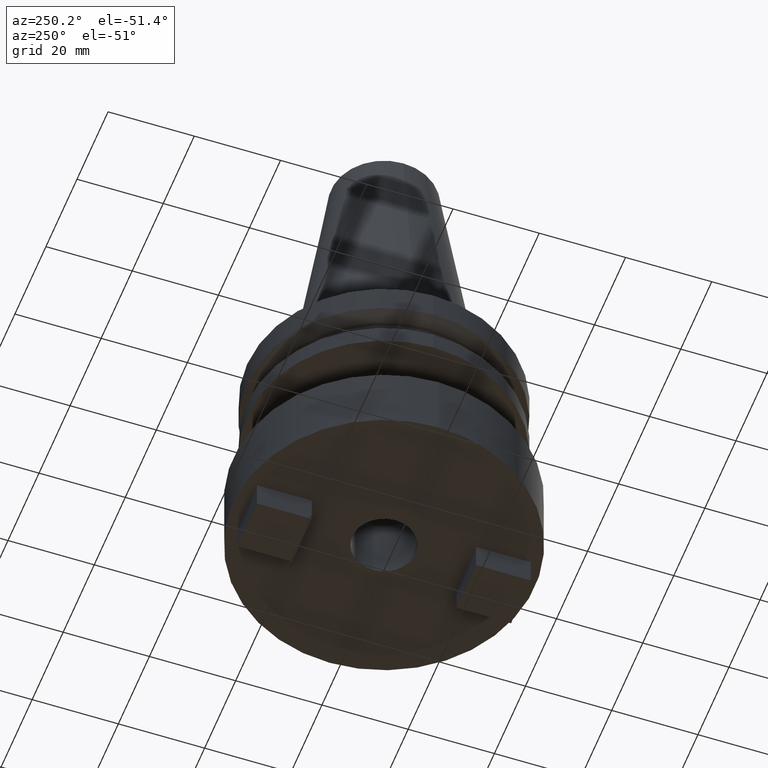
[diagram: clean part render]
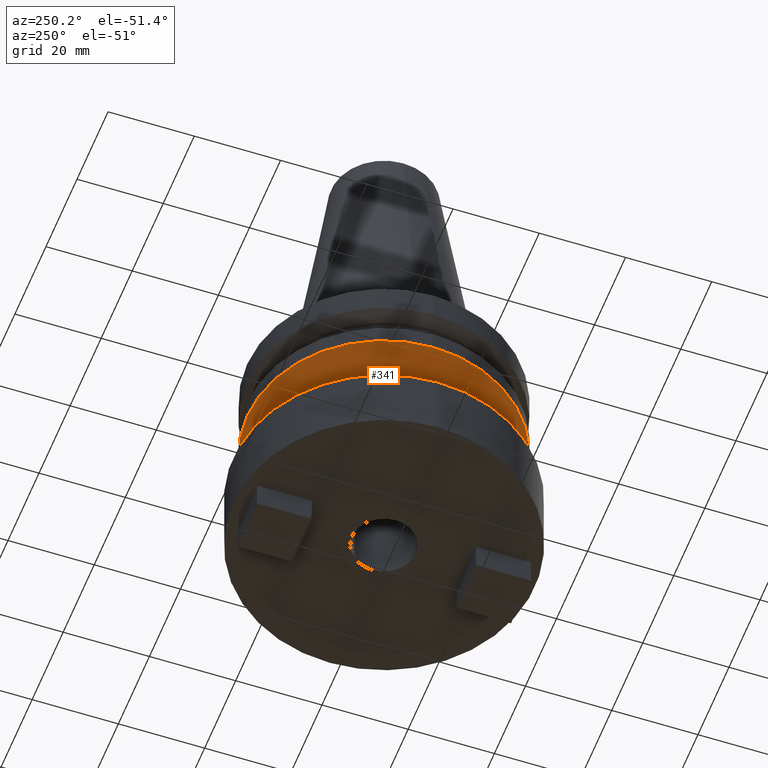
[diagram: same view with one face highlighted and labeled with its STEP entity id]
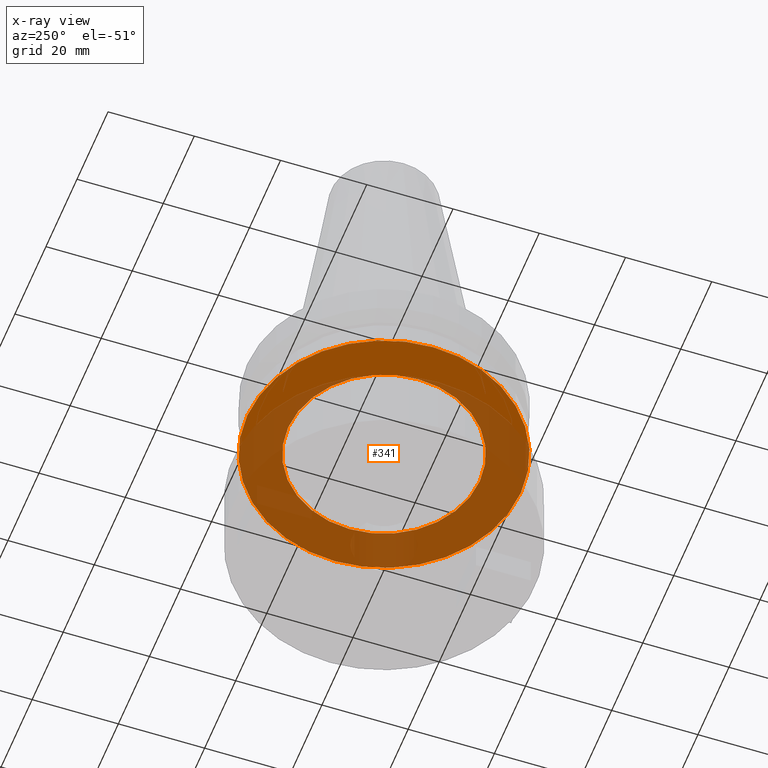
[diagram: x-ray of the same camera — body ghosted, the highlighted face saturated]
A machine part, auxiliary view. The second image highlights one B-rep face of the part: STEP entity #341.
The next image is the same camera in x-ray: the body ghosted, the highlighted face saturated — about 67% of this face is hidden behind the body in this view.
In plain terms, the highlighted planar face has unit normal (0, -0, 1).
Its self-contained STEP definition (entity closure, byte-faithful):
#9 = ORIENTED_EDGE ( 'NONE', *, *, #569, .F. ) ;
#44 = AXIS2_PLACEMENT_3D ( 'NONE', #920, #765, #421 ) ;
#79 = FACE_BOUND ( 'NONE', #702, .T. ) ;
#85 = DIRECTION ( 'NONE',  ( 0.000000000000000000, -0.000000000000000000, 1.000000000000000000 ) ) ;
#90 = DIRECTION ( 'NONE',  ( -0.000000000000000000, -0.000000000000000000, 1.000000000000000000 ) ) ;
#158 = CARTESIAN_POINT ( 'NONE',  ( 0.000000000000000000, 0.000000000000000000, -19.04999999999999716 ) ) ;
#159 = CARTESIAN_POINT ( 'NONE',  ( 0.000000000000000000, 0.000000000000000000, -19.04999999999999716 ) ) ;
#184 = AXIS2_PLACEMENT_3D ( 'NONE', #753, #85, #511 ) ;
#227 = EDGE_CURVE ( 'NONE', #779, #291, #667, .T. ) ;
#233 = AXIS2_PLACEMENT_3D ( 'NONE', #555, #739, #386 ) ;
#269 = CIRCLE ( 'NONE', #889, 31.74999999999999289 ) ;
#291 = VERTEX_POINT ( 'NONE', #585 ) ;
#299 = VERTEX_POINT ( 'NONE', #1004 ) ;
#317 = PLANE ( 'NONE',  #184 ) ;
#341 = ADVANCED_FACE ( 'NONE', ( #590, #79 ), #317, .F. ) ;
#350 = EDGE_CURVE ( 'NONE', #299, #370, #269, .T. ) ;
#369 = AXIS2_PLACEMENT_3D ( 'NONE', #158, #595, #601 ) ;
#370 = VERTEX_POINT ( 'NONE', #759 ) ;
#386 = DIRECTION ( 'NONE',  ( 1.000000000000000000, 0.000000000000000000, 0.000000000000000000 ) ) ;
#421 = DIRECTION ( 'NONE',  ( 1.000000000000000000, 0.000000000000000000, 0.000000000000000000 ) ) ;
#472 = ORIENTED_EDGE ( 'NONE', *, *, #1068, .T. ) ;
#511 = DIRECTION ( 'NONE',  ( 1.000000000000000000, 0.000000000000000000, 0.000000000000000000 ) ) ;
#555 = CARTESIAN_POINT ( 'NONE',  ( 0.000000000000000000, 0.000000000000000000, -19.04999999999999716 ) ) ;
#569 = EDGE_CURVE ( 'NONE', #370, #299, #844, .T. ) ;
#585 = CARTESIAN_POINT ( 'NONE',  ( 22.22500000000000142, 0.000000000000000000, -19.04999999999999716 ) ) ;
#590 = FACE_OUTER_BOUND ( 'NONE', #874, .T. ) ;
#595 = DIRECTION ( 'NONE',  ( -0.000000000000000000, -0.000000000000000000, 1.000000000000000000 ) ) ;
#601 = DIRECTION ( 'NONE',  ( 1.000000000000000000, 0.000000000000000000, 0.000000000000000000 ) ) ;
#627 = CIRCLE ( 'NONE', #44, 22.22500000000000142 ) ;
#666 = DIRECTION ( 'NONE',  ( 1.000000000000000000, 0.000000000000000000, 0.000000000000000000 ) ) ;
#667 = CIRCLE ( 'NONE', #233, 22.22500000000000142 ) ;
#702 = EDGE_LOOP ( 'NONE', ( #472, #1059 ) ) ;
#739 = DIRECTION ( 'NONE',  ( -0.000000000000000000, -0.000000000000000000, 1.000000000000000000 ) ) ;
#753 = CARTESIAN_POINT ( 'NONE',  ( 0.000000000000000000, 31.74999999999999289, -19.04999999999999716 ) ) ;
#759 = CARTESIAN_POINT ( 'NONE',  ( -31.74999999999999289, 3.888253587292845687E-15, -19.04999999999999716 ) ) ;
#765 = DIRECTION ( 'NONE',  ( -0.000000000000000000, -0.000000000000000000, 1.000000000000000000 ) ) ;
#779 = VERTEX_POINT ( 'NONE', #1023 ) ;
#844 = CIRCLE ( 'NONE', #369, 31.74999999999999289 ) ;
#874 = EDGE_LOOP ( 'NONE', ( #915, #9 ) ) ;
#889 = AXIS2_PLACEMENT_3D ( 'NONE', #159, #90, #666 ) ;
#915 = ORIENTED_EDGE ( 'NONE', *, *, #350, .F. ) ;
#920 = CARTESIAN_POINT ( 'NONE',  ( 0.000000000000000000, 0.000000000000000000, -19.04999999999999716 ) ) ;
#1004 = CARTESIAN_POINT ( 'NONE',  ( 31.74999999999999289, 0.000000000000000000, -19.04999999999999716 ) ) ;
#1023 = CARTESIAN_POINT ( 'NONE',  ( -22.22500000000000142, 2.721777511104992849E-15, -19.04999999999999716 ) ) ;
#1059 = ORIENTED_EDGE ( 'NONE', *, *, #227, .T. ) ;
#1068 = EDGE_CURVE ( 'NONE', #291, #779, #627, .T. ) ;